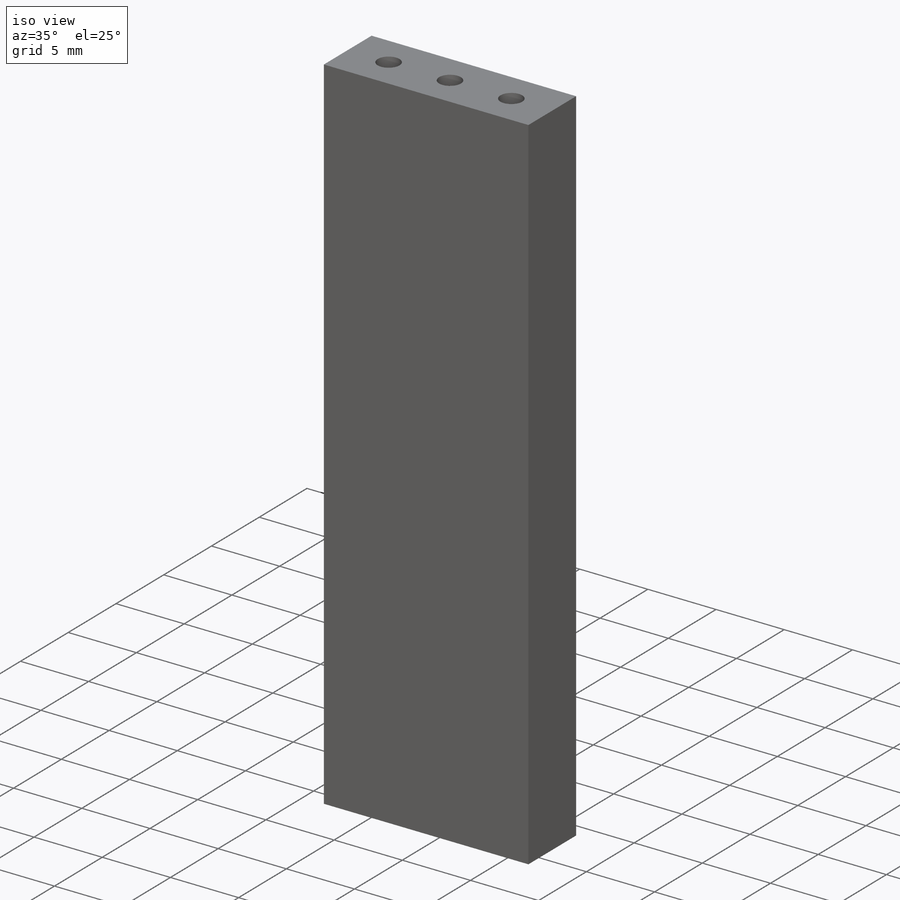
[diagram: iso view]
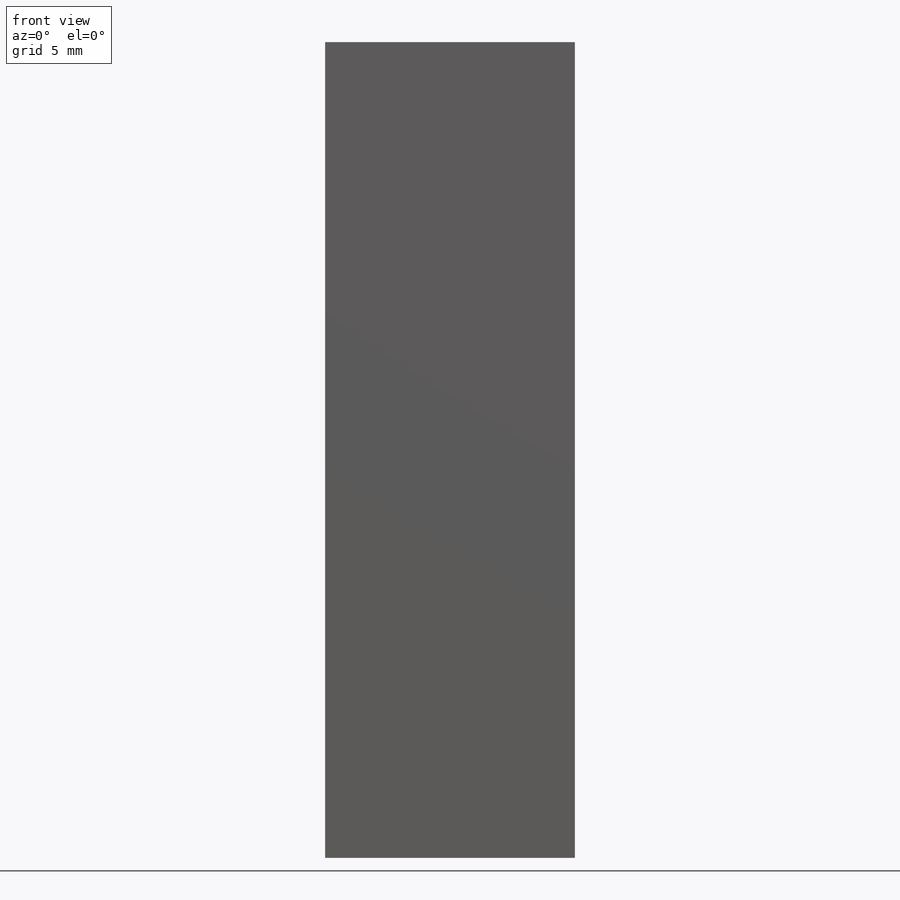
[diagram: front view]
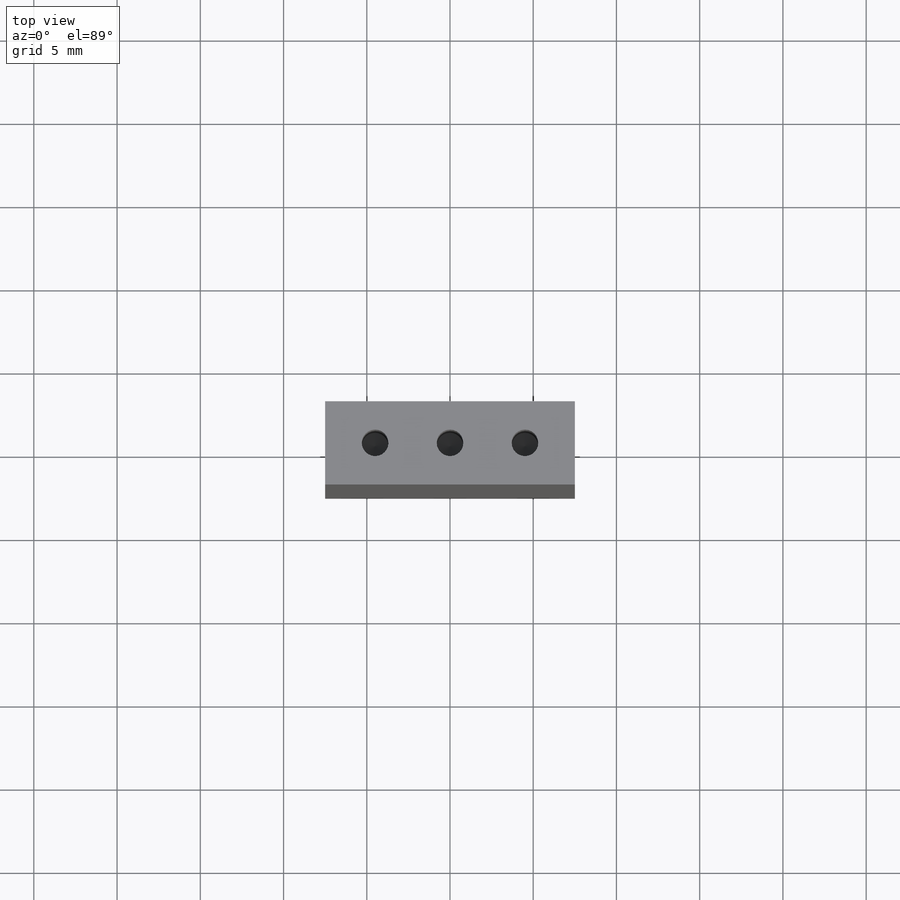
[diagram: top view]
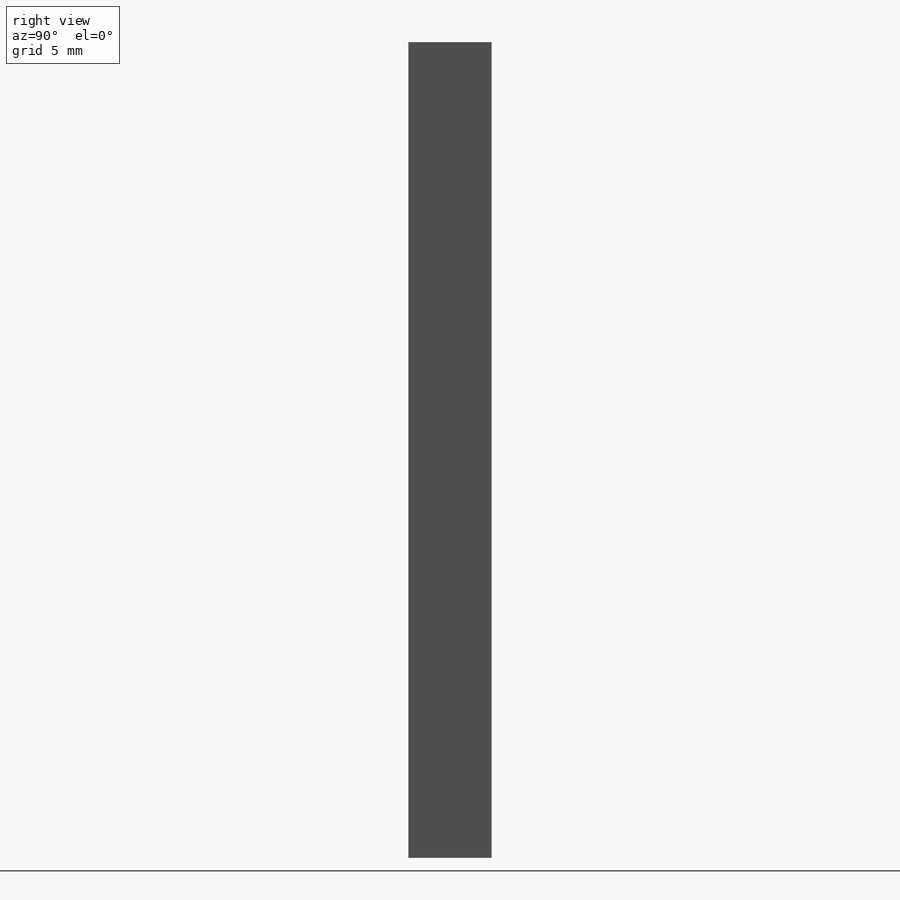
[diagram: right view]
SOLIDWORKS PART (.sldprt)
format: sldprt  version: not decoded by parser v0  size: 216,576 bytes
history: native  units: mm
features: thread x6, sketch x5, hole x2, material x1, extrude x1 (+16 scaffold rows collapsed)
feature tree (31):
  scaffold x16  (default folders/planes/origin — collapsed)
  material  "Material <not specified>"
  sketch  "Sketch1"  dims[D1=15.0mm D2=5.0mm]
  extrude  "Boss-Extrude1"  Depth=49mm
  hole  "M2 Tapped Hole1"  Diameter=1.6mm Depth=11.2mm
  sketch  "Sketch3"  dims[D1=3.0mm D2=3.0mm D3=4.5mm]
  sketch  "Sketch2"  dims[hole-wizard template sketch: 47 standard entries collapsed; hole parameters kept: c15.Tap Drill Depth=11.2mm c15.D3=~14.816244mm c15.Drill Angle=118.0deg]
  thread  "Hole Thread1"  Diameter=10mm  [1 undecoded]
  thread  "Hole Thread2"  Diameter=10mm  [1 undecoded]
  thread  "Hole Thread3"  Diameter=10mm  [1 undecoded]
  hole  "M2 Tapped Hole2"  Diameter=1.6mm Depth=11.2mm
  sketch  "Sketch5"  dims[D1=4.5mm D2=4.5mm]
  sketch  "Sketch4"  dims[hole-wizard template sketch: 47 standard entries collapsed; hole parameters kept: c15.Tap Drill Depth=11.2mm c15.D3=~14.816244mm c15.Drill Angle=118.0deg]
  thread  "Hole Thread4"  Diameter=10mm  [1 undecoded]
  thread  "Hole Thread5"  Diameter=10mm  [1 undecoded]
  thread  "Hole Thread6"  Diameter=10mm  [1 undecoded]
decode coverage: 14 of 14 modeling features carry decoded parameters
note: ~ marks probable driven/reference dimensions
note: 6 parameter values undecoded
note: suppression state not decoded; provenance and decode notes live in map.json
